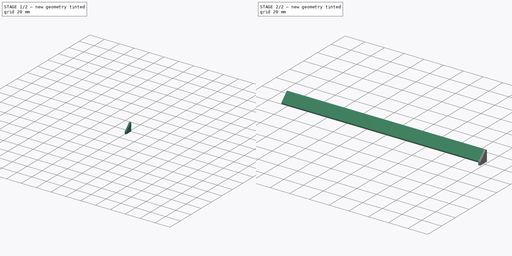
[diagram: build sequence overview — one tinted view per stage of 2, left to right]
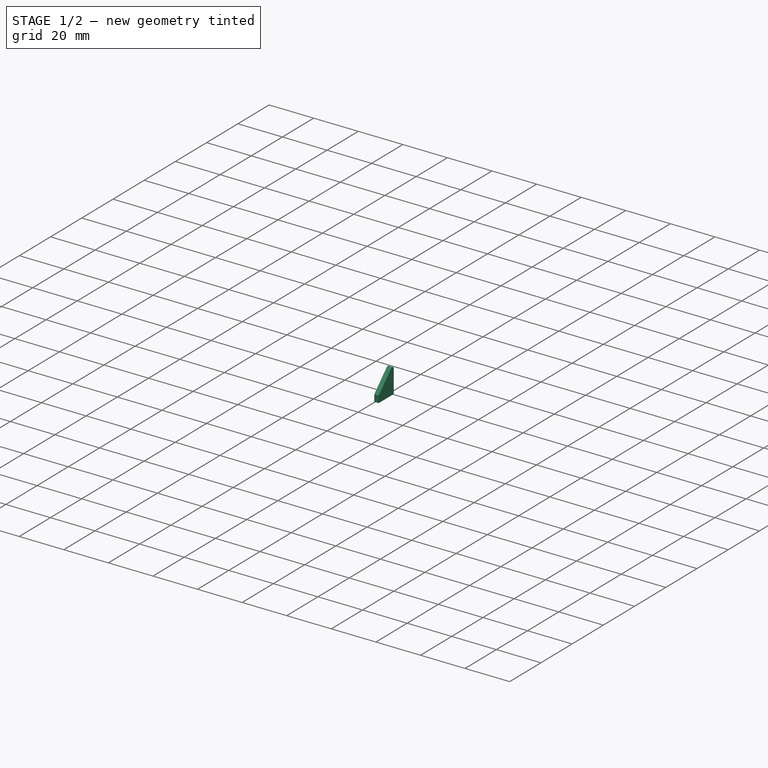
[diagram: stage 1 of 2 — iso view after this stage's code; geometry added in this stage tinted green]
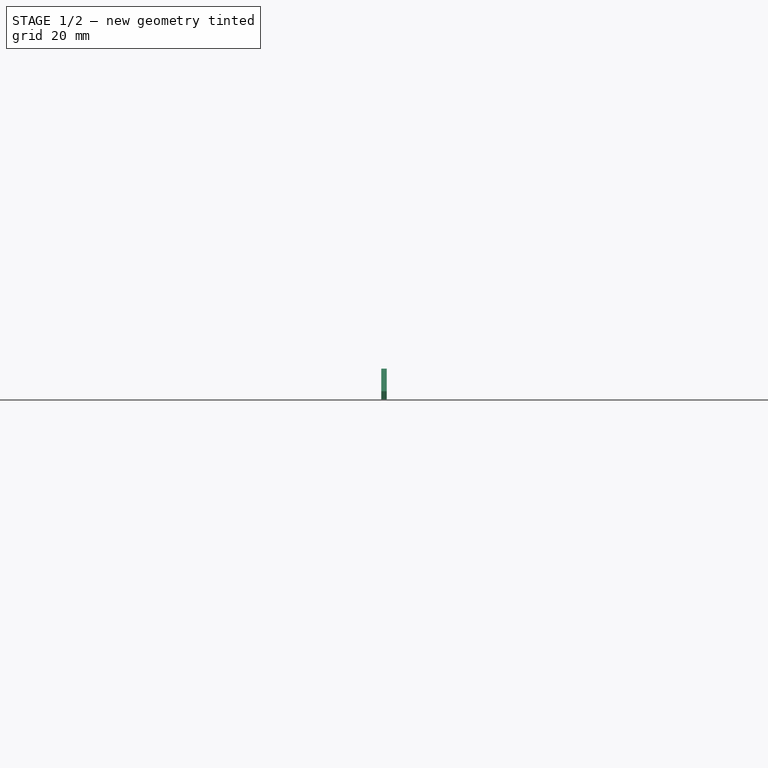
[diagram: stage 1 of 2 — front view after this stage's code; geometry added in this stage tinted green]
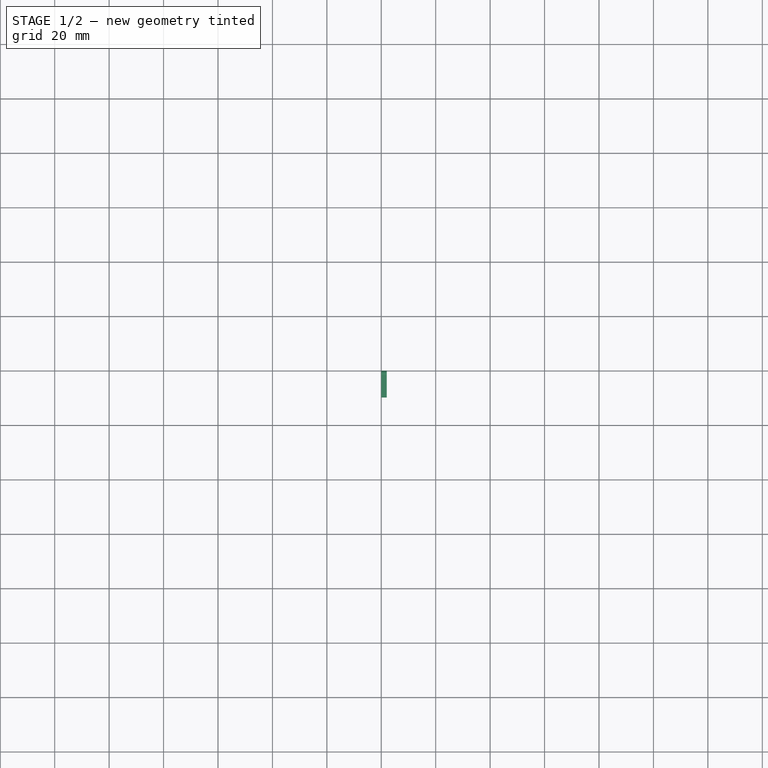
[diagram: stage 1 of 2 — top view after this stage's code; geometry added in this stage tinted green]
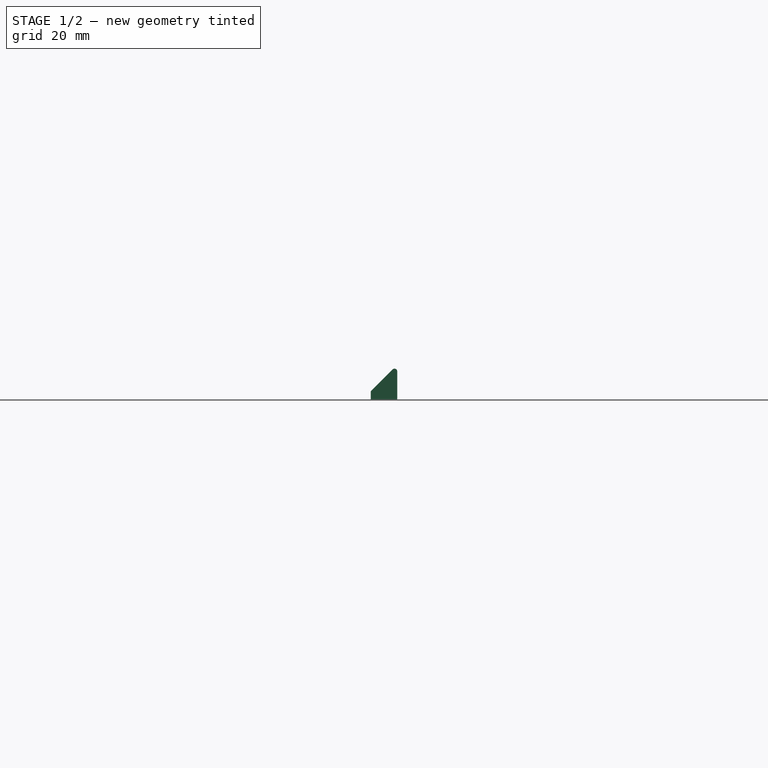
[diagram: stage 1 of 2 — right view after this stage's code; geometry added in this stage tinted green]
FCSTD DOCUMENT  (FreeCAD 1.0R39109 (Git))
Label: 01_Arm
License: All rights reserved
LicenseURL: https://en.wikipedia.org/wiki/All_rights_reserved
objects: Sketcher::SketchObject×2, PartDesign::Pad×2, PartDesign::Fillet×2, PartDesign::Body×1, Spreadsheet::Sheet×1
note: 17 computed .brp shape members not serialized (recipe doc carries the construction recipe); baked Part::Feature solids carry a one-line shape summary decoded from their .brp

FEATURE [Sketcher::SketchObject] Sketch
  ArcFitTolerance = 1e-06
  AttachmentSupport = -> [YZ_Plane]
  FullyConstrained = true
  MakeInternals = false
  MapMode = 5
  Placement = pos=(0,0,0) rot=(0.57735,0.57735,0.57735;2.0944rad)
  sketch-geometry (4):
    g0: LineSegment StartX=-9.7 StartY=0 StartZ=0 EndX=0 EndY=0 EndZ=0
    g1: LineSegment StartX=0 StartY=0 StartZ=0 EndX=0 EndY=12.7 EndZ=0
    g2: LineSegment StartX=-9.7 StartY=0 StartZ=0 EndX=-9.7 EndY=3 EndZ=0
    g3: LineSegment StartX=-9.7 StartY=3 StartZ=0 EndX=0 EndY=12.7 EndZ=0
  constraints (12):
    c: Distance(g0) = 9.7
    c: Horizontal(g0)
    c: Distance(g1) = 12.7
    c: Vertical(g1)
    c: Coincident(g1,g0)
    c: Distance(g2) = 3
    c: Vertical(g2)
    c: Coincident(g2,g0)
    c: Coincident(g3,g2)
    c: Coincident(g3,g1)
    c: DistanceY(g-1,g0) = 0
    c: DistanceX(g0,g-1) = 0
FEATURE [PartDesign::Pad] Pad
  Direction = (1,0,0)
  Length = 2
  Length2 = 10
  Placement = pos=(0,0,0) rot=(1,1,1;2.0944rad)
  Profile = -> Sketch
  ReferenceAxis = -> Sketch [N_Axis]
  Refine = true
  Suppressed = false
  Type = 0
FEATURE [PartDesign::Fillet] Fillet
  Base = -> Pad [Edge5]
  BaseFeature = -> Pad
  Placement = pos=(0,0,0) rot=(1,1,1;2.0944rad)
  Radius = 1
  Refine = true
  SupportTransform = false
  Suppressed = false
  UseAllEdges = false
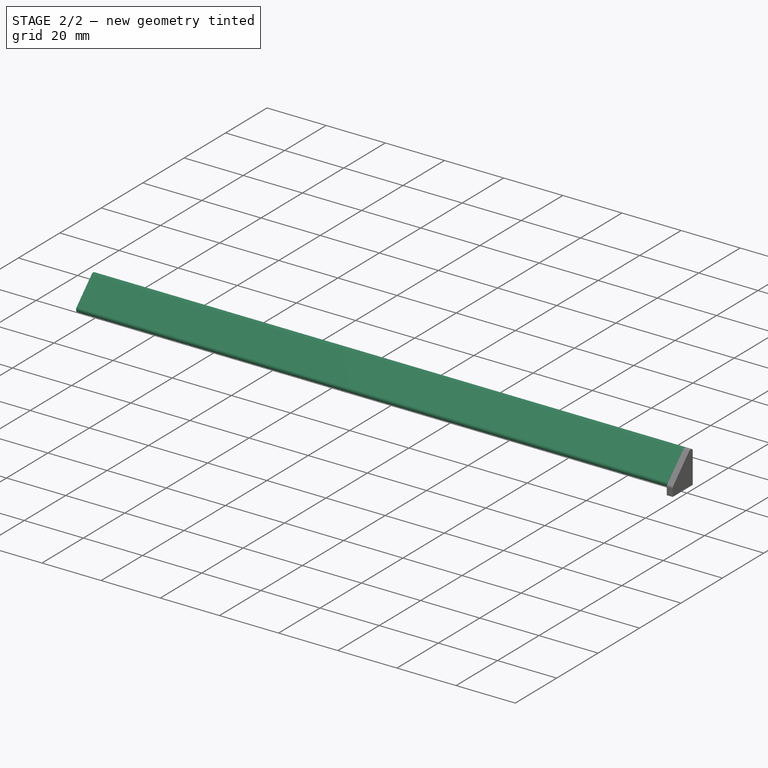
[diagram: stage 2 of 2 — iso view after this stage's code; geometry added in this stage tinted green]
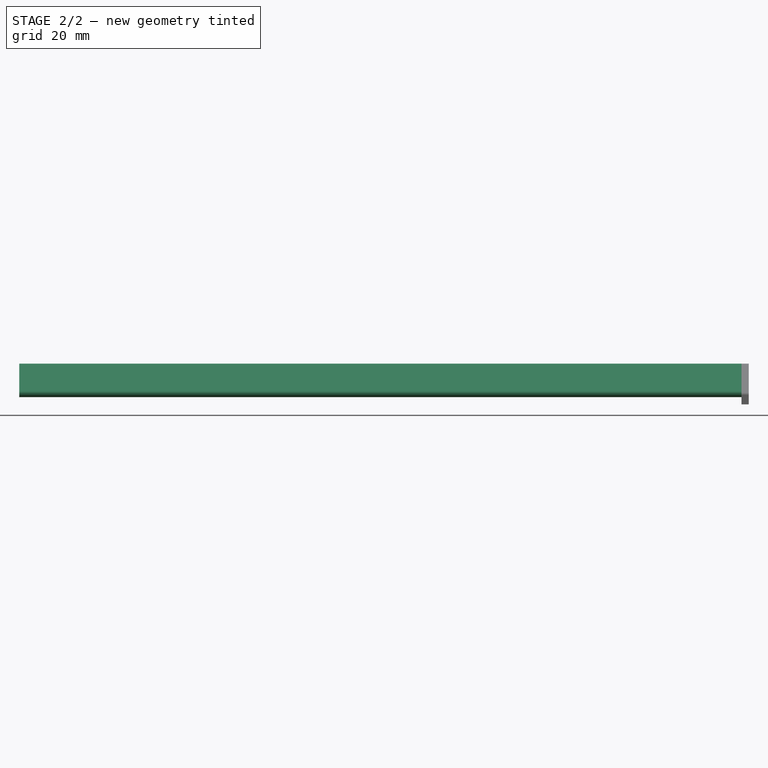
[diagram: stage 2 of 2 — front view after this stage's code; geometry added in this stage tinted green]
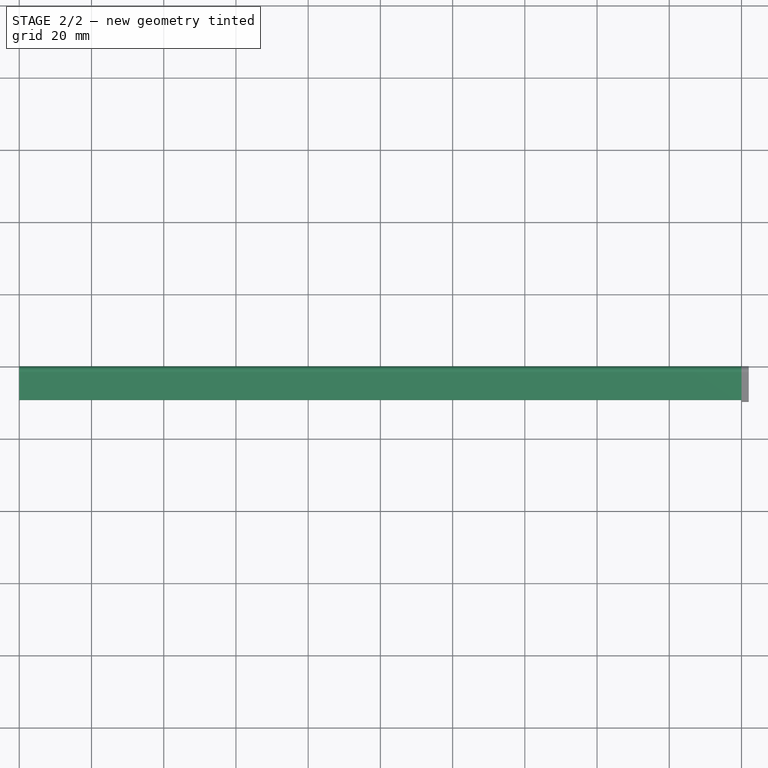
[diagram: stage 2 of 2 — top view after this stage's code; geometry added in this stage tinted green]
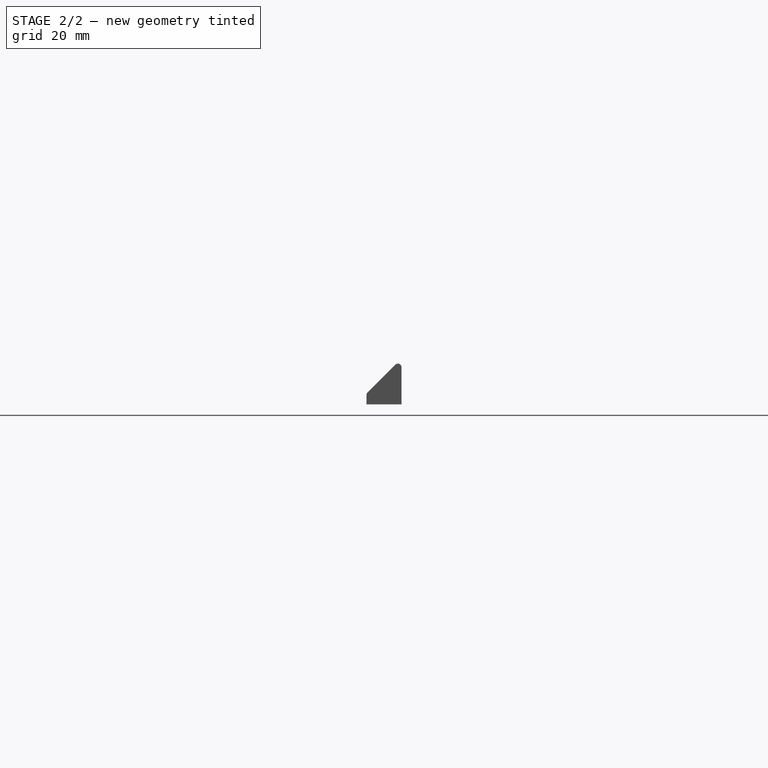
[diagram: stage 2 of 2 — right view after this stage's code; geometry added in this stage tinted green]
FEATURE [PartDesign::Fillet] Fillet001
  Base = -> Fillet [Edge15]
  BaseFeature = -> Fillet
  Placement = pos=(0,0,0) rot=(1,1,1;2.0944rad)
  Radius = 1
  Refine = true
  SupportTransform = false
  Suppressed = false
  UseAllEdges = false
FEATURE [Sketcher::SketchObject] Sketch001
  ArcFitTolerance = 1e-06
  AttachmentSupport = -> [Fillet001]
  FullyConstrained = true
  MakeInternals = false
  MapMode = 5
  Placement = pos=(0,0,0) rot=(0.57735,0.57735,-0.57735;4.18879rad)
  sketch-geometry (7):
    g0: LineSegment StartX=0 StartY=-3 StartZ=0 EndX=0 EndY=-10.2858 EndZ=0
    g1: LineSegment StartX=-8.28579 StartY=-2 StartZ=0 EndX=-1 EndY=-2 EndZ=0
    g2: GeomPoint [constr] X=-1 Y=-3 Z=0
    g3: ArcOfCircle CenterX=-1 CenterY=-3 CenterZ=0 NormalX=0 NormalY=0 NormalZ=1 AngleXU=0 Radius=1 StartAngle=1e-16 EndAngle=1.5708
    g4: LineSegment StartX=-8.99289 StartY=-3.70711 StartZ=0 EndX=-1.70711 EndY=-10.9929 EndZ=0
    g5: ArcOfCircle CenterX=-1.00041 CenterY=-10.2848 CenterZ=0 NormalX=0 NormalY=0 NormalZ=1 AngleXU=0 Radius=1.00041 StartAngle=3.92799 EndAngle=6.28219
    g6: ArcOfCircle CenterX=-8.28579 CenterY=-3 CenterZ=0 NormalX=0 NormalY=0 NormalZ=1 AngleXU=0 Radius=1 StartAngle=1.5708 EndAngle=3.92699
  constraints (23):
    c: Vertical(g0)
    c: Distance(g0) = 7.28579
    c: Horizontal(g1)
    c: Distance(g1) = 7.28579
    c: Vertical(g2,g1)
    c: Horizontal(g2,g0)
    c: DistanceY(g2,g1) = 1
    c: DistanceX(g2,g0) = 1
    c: DistanceY(g0,g-1) = 3
    c: DistanceX(g1,g-1) = 1
    c: Coincident(g3,g1)
    c: Coincident(g3,g0)
    c: Vertical(g1,g3)
    c: Angle(g4,g-1) = 0.785398
    c: Distance(g4) = 10.3037
    c: DistanceX(g4,g1) = 0.707107
    c: DistanceY(g4,g1) = 1.70711
    c: Coincident(g5,g4)
    c: Coincident(g5,g0)
    c: DistanceY(g0,g5) = 0.001
    c: Coincident(g6,g4)
    c: Coincident(g6,g1)
    c: DistanceY(g6,g1) = 1
FEATURE [PartDesign::Pad] Pad001
  BaseFeature = -> Fillet001
  Direction = (-1,0,0)
  Length = 200
  Length2 = 10
  Placement = pos=(0,0,0) rot=(1,1,1;2.0944rad)
  Profile = -> Sketch001
  ReferenceAxis = -> Sketch001 [N_Axis]
  Refine = true
  Suppressed = false
  Type = 0
  expr: Length = <<Parameters>>.arm_length
FEATURE [PartDesign::Body] Body
  AllowCompound = false
  Group = -> [Sketch,Pad,Fillet,Fillet001,Sketch001,Pad001]
  Origin = -> Origin
  Tip = -> Pad001
FEATURE [Spreadsheet::Sheet] Spreadsheet  label="Parameters"
  cells = A1='arm_length; B1(arm_length)=200
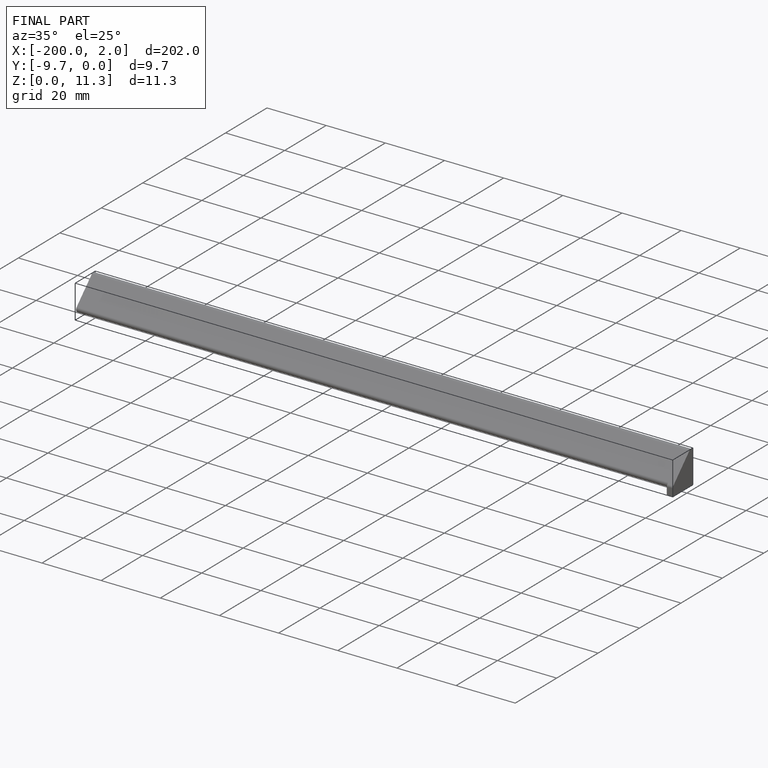
[diagram: finished part — iso view with bounding-box wireframe]
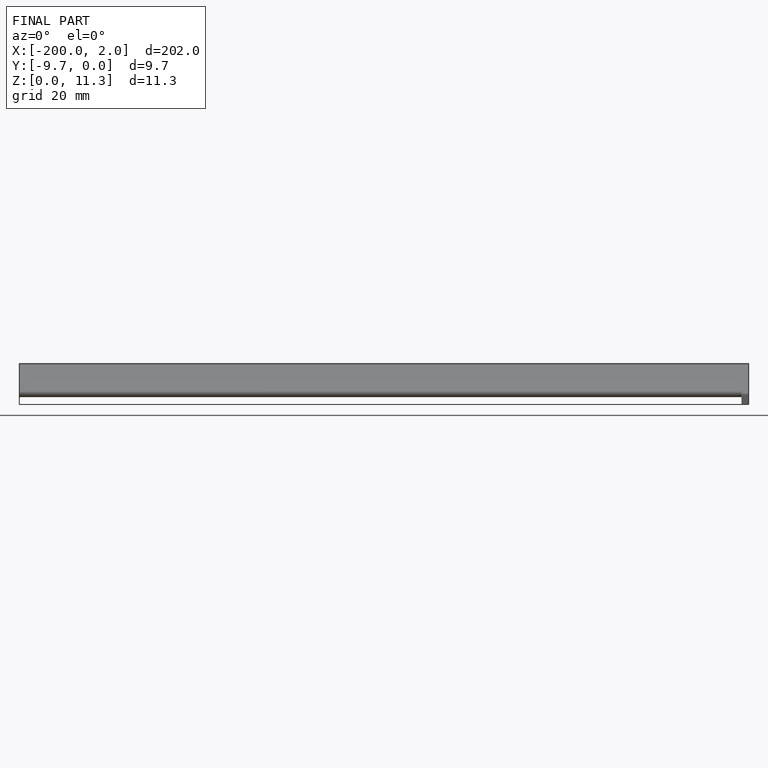
[diagram: finished part — front view with bounding-box wireframe]
